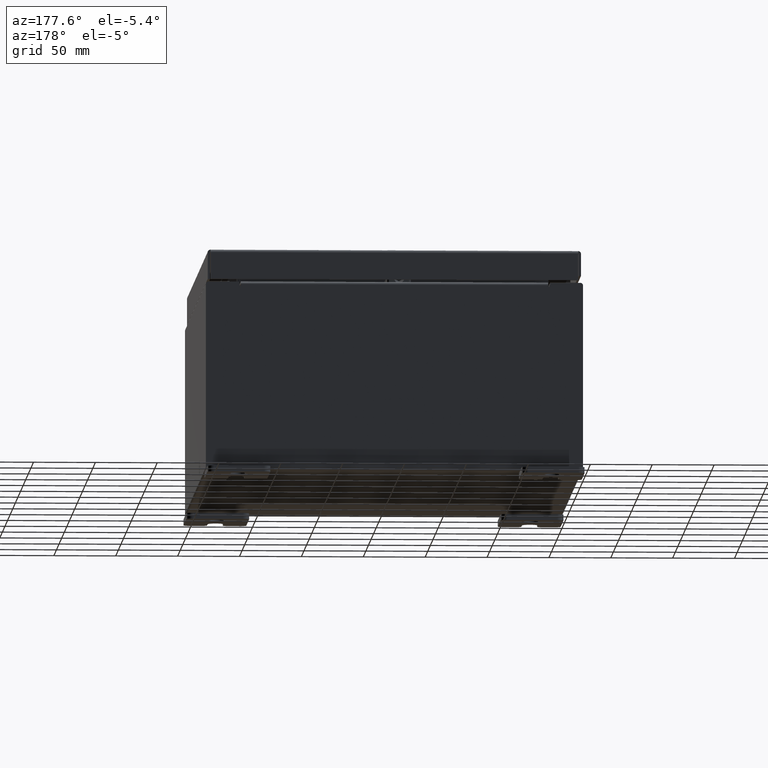
[diagram: clean part render]
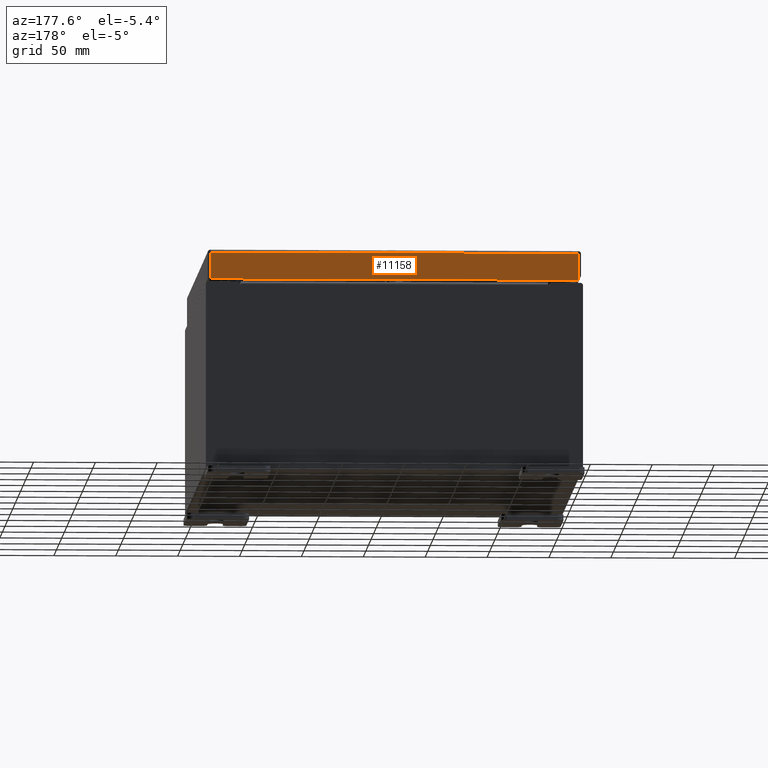
[diagram: same view with one face highlighted and labeled with its STEP entity id]
A machine part, auxiliary view. The second image highlights one B-rep face of the part: STEP entity #11158.
In plain terms, the highlighted planar face has unit normal (0, -1, -0).
Its self-contained STEP definition (entity closure, byte-faithful):
#356 = AXIS2_PLACEMENT_3D ( 'NONE', #41272, #41066, #40988 ) ;
#668 = DIRECTION ( 'NONE',  ( -1.000000000000000000, -4.806318896307095400E-031, -1.843699422066395700E-045 ) ) ;
#1758 = VERTEX_POINT ( 'NONE', #38532 ) ;
#1883 = VERTEX_POINT ( 'NONE', #17777 ) ;
#5718 = ORIENTED_EDGE ( 'NONE', *, *, #47847, .F. ) ;
#5788 = LINE ( 'NONE', #19959, #45575 ) ;
#7706 = DIRECTION ( 'NONE',  ( 0.0000000000000000000, 3.798629886902792400E-015, -1.000000000000000000 ) ) ;
#8099 = VECTOR ( 'NONE', #54933, 39.37007874015748100 ) ;
#11158 = ADVANCED_FACE ( 'NONE', ( #18884 ), #41194, .F. ) ;
#14994 = VERTEX_POINT ( 'NONE', #15793 ) ;
#15662 = VERTEX_POINT ( 'NONE', #29888 ) ;
#15793 = CARTESIAN_POINT ( 'NONE',  ( 5.848657864376267700, 7.937500000000003600, -0.9376999999999997600 ) ) ;
#17402 = CARTESIAN_POINT ( 'NONE',  ( 5.848657864376266800, 7.937500000000000000, 3.041243838330249900E-014 ) ) ;
#17777 = CARTESIAN_POINT ( 'NONE',  ( -5.848657864376270300, 7.937500000000000000, -0.08769999999999997200 ) ) ;
#18884 = FACE_OUTER_BOUND ( 'NONE', #38339, .T. ) ;
#19565 = DIRECTION ( 'NONE',  ( -0.0000000000000000000, 3.798629886902792400E-015, -1.000000000000000000 ) ) ;
#19959 = CARTESIAN_POINT ( 'NONE',  ( -5.848657864376270300, 7.937500000000000000, -0.07469999999999972500 ) ) ;
#24011 = ORIENTED_EDGE ( 'NONE', *, *, #30708, .F. ) ;
#26684 = CARTESIAN_POINT ( 'NONE',  ( -5.937500000000000900, 7.937500000000003600, -0.9377000000000013100 ) ) ;
#28498 = EDGE_CURVE ( 'NONE', #1883, #15662, #5788, .T. ) ;
#28629 = VECTOR ( 'NONE', #7706, 39.37007874015748100 ) ;
#29847 = LINE ( 'NONE', #46413, #46026 ) ;
#29888 = CARTESIAN_POINT ( 'NONE',  ( -5.848657864376270300, 7.937500000000003600, -0.9377000000000013100 ) ) ;
#30708 = EDGE_CURVE ( 'NONE', #1758, #1883, #29847, .T. ) ;
#34430 = LINE ( 'NONE', #26684, #8099 ) ;
#38339 = EDGE_LOOP ( 'NONE', ( #24011, #51185, #5718, #51169 ) ) ;
#38532 = CARTESIAN_POINT ( 'NONE',  ( 5.848657864376267700, 7.937500000000000000, -0.08769999999999997200 ) ) ;
#40988 = DIRECTION ( 'NONE',  ( 0.0000000000000000000, 3.798629886902792400E-015, -1.000000000000000000 ) ) ;
#41066 = DIRECTION ( 'NONE',  ( 4.806318896307095400E-031, -1.000000000000000000, -3.798629886902792400E-015 ) ) ;
#41194 = PLANE ( 'NONE',  #356 ) ;
#41272 = CARTESIAN_POINT ( 'NONE',  ( -3.815015623943756900E-030, 7.937500000000000000, 3.041243838330249900E-014 ) ) ;
#45575 = VECTOR ( 'NONE', #19565, 39.37007874015748100 ) ;
#46026 = VECTOR ( 'NONE', #668, 39.37007874015748100 ) ;
#46413 = CARTESIAN_POINT ( 'NONE',  ( -5.937500000000000900, 7.937500000000000000, -0.08769999999999997200 ) ) ;
#47847 = EDGE_CURVE ( 'NONE', #15662, #14994, #34430, .T. ) ;
#51169 = ORIENTED_EDGE ( 'NONE', *, *, #28498, .F. ) ;
#51185 = ORIENTED_EDGE ( 'NONE', *, *, #56671, .T. ) ;
#52106 = LINE ( 'NONE', #17402, #28629 ) ;
#54933 = DIRECTION ( 'NONE',  ( 1.000000000000000000, -0.0000000000000000000, 1.265276965486606200E-016 ) ) ;
#56671 = EDGE_CURVE ( 'NONE', #1758, #14994, #52106, .T. ) ;